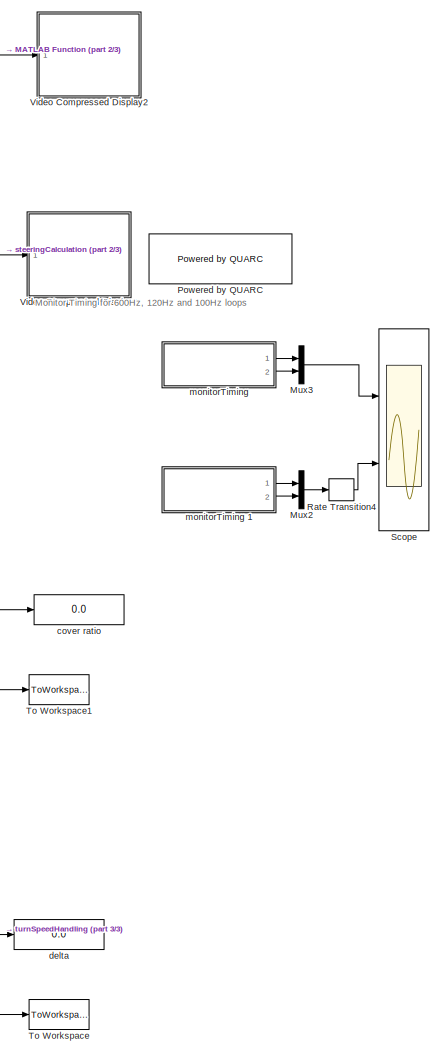
[diagram: root canvas - part 1/3, right side, full height]
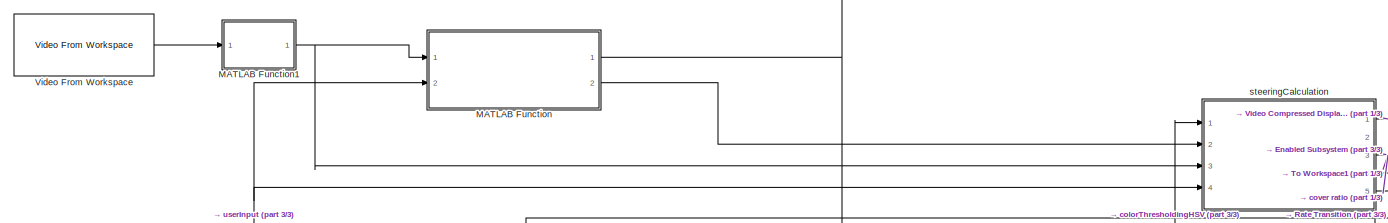
[diagram: root canvas - part 2/3, top center region]
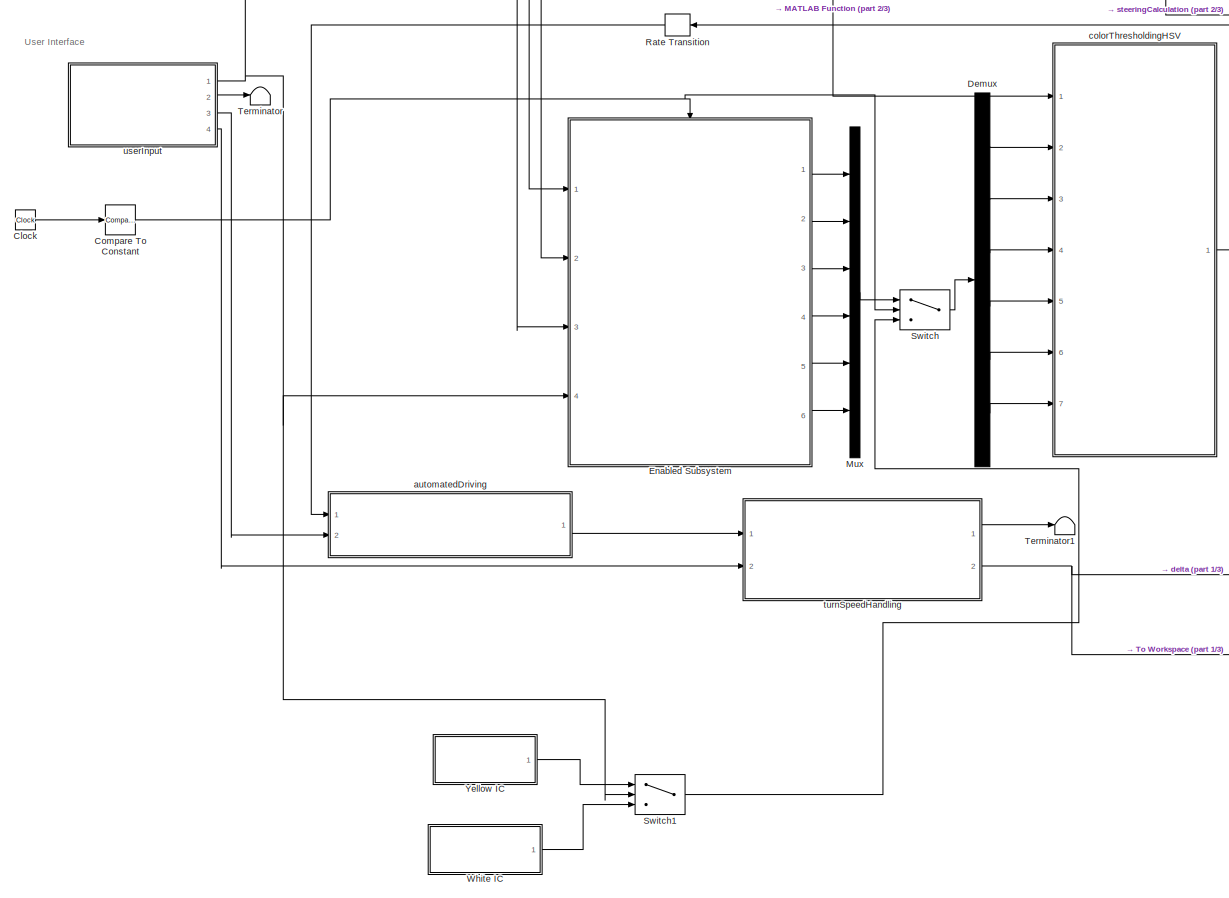
[diagram: root canvas - part 3/3, middle left region]
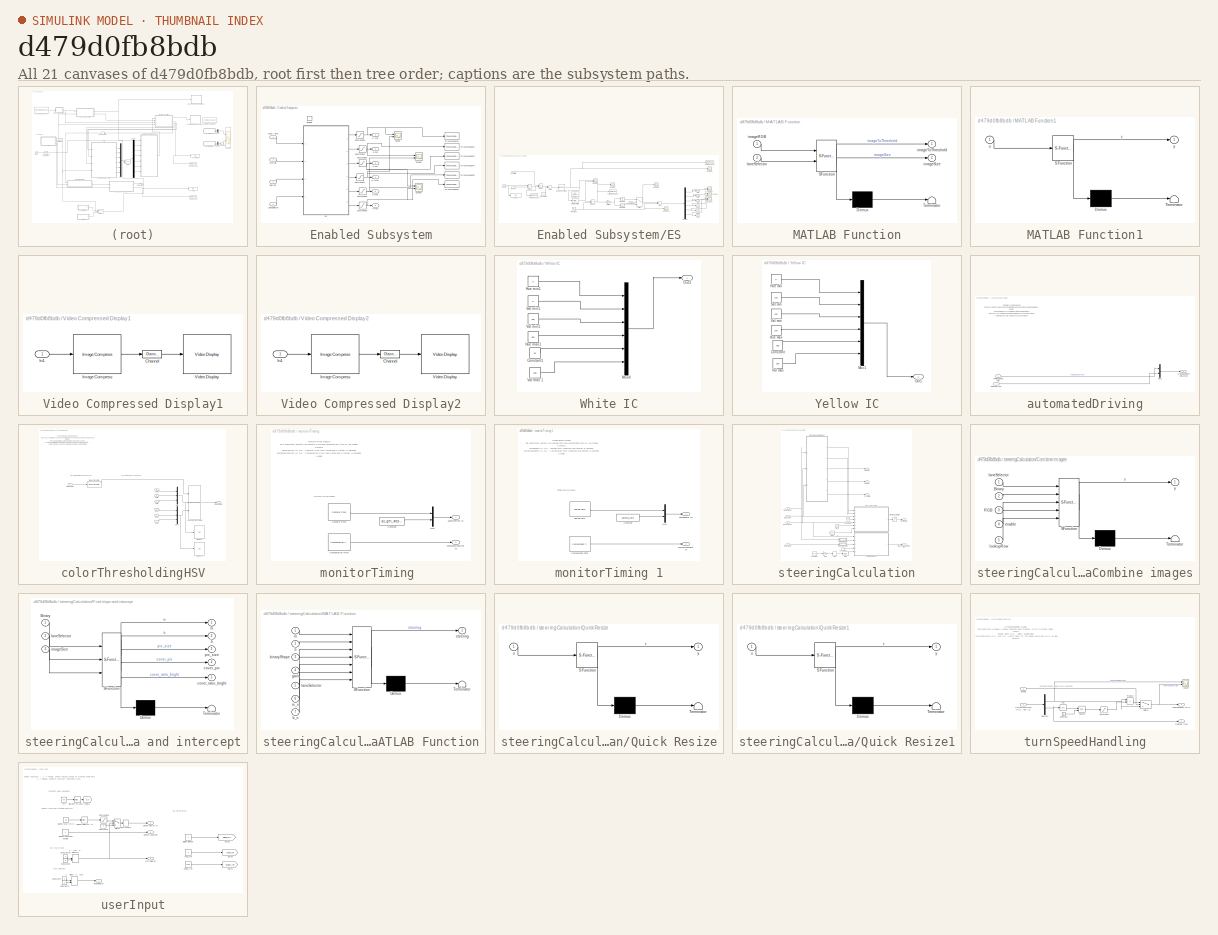
[diagram: thumbnail index - all 21 canvases of the model, root first then tree order]
MODEL slx_d479d0fb8bdb
KIND model
CONFIG AbsTol = auto
CONFIG EnableMultiTasking = off
CONFIG FixedStep = 1/120
CONFIG MaxStep = auto
CONFIG MinStep = auto
CONFIG RelTol = 1e-3
CONFIG SampleTimeConstraint = Unconstrained
CONFIG Solver = ode2
CONFIG SolverName = ode2
CONFIG StartTime = 0.0
CONFIG StopTime = 160
WORKSPACE source: MAT-file member
WORKSPACE MCOS: class17 (value not decoded)
BLOCK [Clock] Clock
BLOCK [Reference] Compare To Constant  REF=simulink/Logic and Bit
Operations/Compare
To Constant
  Ports = [1, 1]
  SourceBlock = simulink/Logic and Bit\nOperations/Compare\nTo Constant
  SourceProductBaseCode = SL
  SourceProductName = Simulink
  SourceType = Compare To Constant
BLOCK [Demux] Demux
  DisplayOption = bar
  Outputs = 6
  Ports = [1, 6]
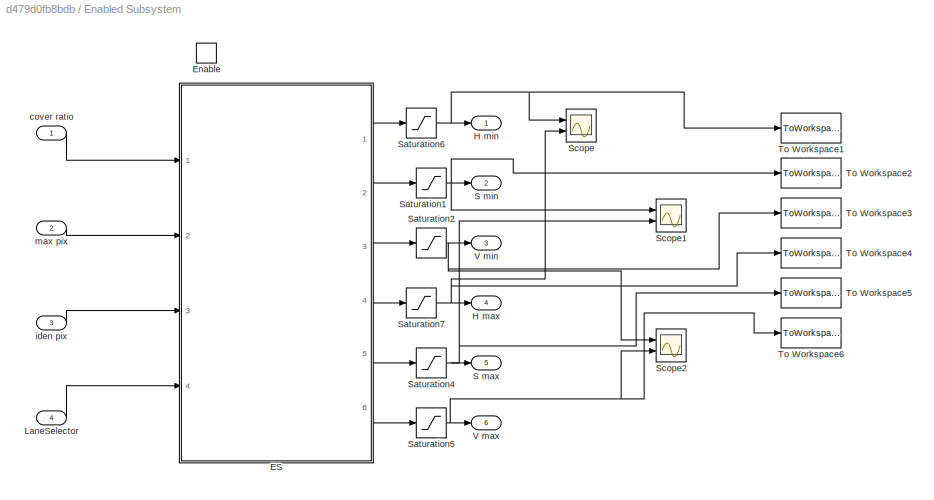
BLOCK [SubSystem] Enabled Subsystem
  Ports = [4, 6, 1]
  RequestExecContextInheritance = off
  TreatAsAtomicUnit = on
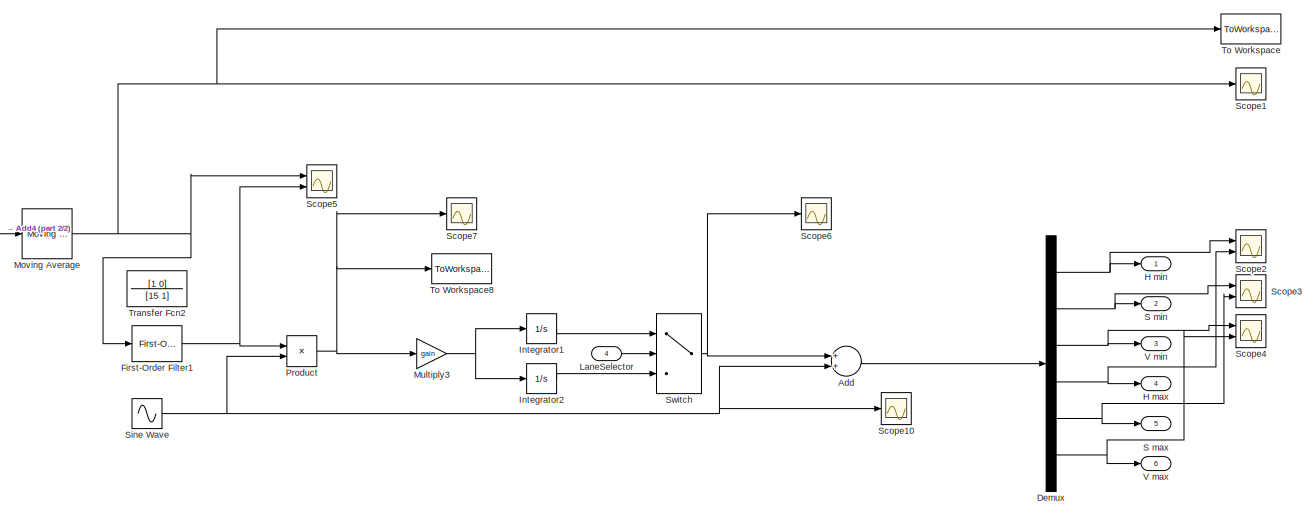
[diagram: Enabled Subsystem/ES - part 1/2, most of the canvas]
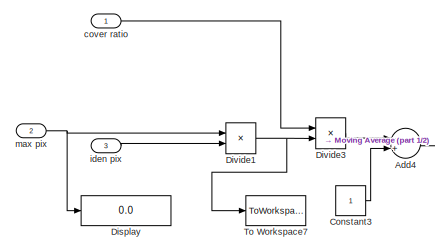
[diagram: Enabled Subsystem/ES - part 2/2, middle left region]
BLOCK [SubSystem] Enabled Subsystem/ES
  Ports = [4, 6]
  RequestExecContextInheritance = off
BLOCK [Sum] Enabled Subsystem/ES/Add
  InputSameDT = off
  OutDataTypeStr = Inherit: Inherit via internal rule
  Ports = [2, 1]
  SaturateOnIntegerOverflow = off
BLOCK [Sum] Enabled Subsystem/ES/Add4
  InputSameDT = off
  Inputs = -+
  OutDataTypeStr = Inherit: Inherit via internal rule
  Ports = [2, 1]
  SaturateOnIntegerOverflow = off
BLOCK [Constant] Enabled Subsystem/ES/Constant3
BLOCK [Demux] Enabled Subsystem/ES/Demux
  DisplayOption = bar
  Outputs = 6
  Ports = [1, 6]
BLOCK [Display] Enabled Subsystem/ES/Display
  Decimation = 1
  Ports = [1]
BLOCK [Product] Enabled Subsystem/ES/Divide1
  InputSameDT = off
  Inputs = /*
  OutDataTypeStr = Inherit: Inherit via internal rule
  Ports = [2, 1]
  RndMeth = Floor
  SaturateOnIntegerOverflow = off
BLOCK [Product] Enabled Subsystem/ES/Divide3
  InputSameDT = off
  Inputs = **
  OutDataTypeStr = Inherit: Inherit via internal rule
  Ports = [2, 1]
  RndMeth = Floor
  SaturateOnIntegerOverflow = off
BLOCK [Reference] Enabled Subsystem/ES/First-Order Filter1  REF=powerlib_meascontrol/Filters/First-Order
Filter
  Ports = [1, 1]
  SourceBlock = powerlib_meascontrol/Filters/First-Order\nFilter
  SourceProductBaseCode = PS
  SourceProductName = Simscape Electrical
  SourceType = First-Order Filter
BLOCK [Outport] Enabled Subsystem/ES/H max
  IconDisplay = Port number
  Port = 4
BLOCK [Outport] Enabled Subsystem/ES/H min
  IconDisplay = Port number
BLOCK [Integrator] Enabled Subsystem/ES/Integrator1
  InitialCondition = [0;100;150;100;255;255]
  LowerSaturationLimit = 0
  Ports = [1, 1]
  UpperSaturationLimit = 255
BLOCK [Integrator] Enabled Subsystem/ES/Integrator2
  InitialCondition = [0;0;150;255;50;255]
  LowerSaturationLimit = 0
  Ports = [1, 1]
  UpperSaturationLimit = 255
BLOCK [Inport] Enabled Subsystem/ES/LaneSelector
  IconDisplay = Port number
  Port = 4
BLOCK [Reference] Enabled Subsystem/ES/Moving Average  REF=dspstat3/Moving
Average
  Ports = [1, 1]
  SourceBlock = dspstat3/Moving\nAverage
  SourceProductBaseCode = DS
  SourceProductName = DSP System Toolbox
  SourceType = dsp.simulink.MovingAverage
BLOCK [Gain] Enabled Subsystem/ES/Multiply3
  Gain = gain
  OutDataTypeStr = Inherit: Inherit via internal rule
  ParamDataTypeStr = Inherit: Inherit via internal rule
  SaturateOnIntegerOverflow = off
BLOCK [Product] Enabled Subsystem/ES/Product
  InputSameDT = off
  OutDataTypeStr = Inherit: Inherit via internal rule
  Ports = [2, 1]
  RndMeth = Floor
  SaturateOnIntegerOverflow = off
BLOCK [Outport] Enabled Subsystem/ES/S max
  IconDisplay = Port number
  Port = 5
BLOCK [Outport] Enabled Subsystem/ES/S min
  IconDisplay = Port number
  Port = 2
BLOCK [Scope] Enabled Subsystem/ES/Scope1
  Floating = off
  NumInputPorts = 1
  Ports = [1]
  ScopeSpecificationString = Simulink.scopes.TimeScopeBlockCfg('CurrentConfiguration', extmgr.ConfigurationSet(extmgr.Configuration('Core','General UI',true),extmgr.Configuration('Core','Source UI',true),extmgr.Configuration('Sources','WiredSimulink',true,'DataLoggingVariableName','ScopeData2'),extmgr.Configuration('Visuals','Time Domain',true,'SerializedDisplays',{struct('MinYLimReal','-0.10881','MaxYLimReal','1.02095','YLab...<+1499ch>
BLOCK [Scope] Enabled Subsystem/ES/Scope10
  Floating = off
  NumInputPorts = 1
  Ports = [1]
  ScopeSpecificationString = Simulink.scopes.TimeScopeBlockCfg('CurrentConfiguration', extmgr.ConfigurationSet(extmgr.Configuration('Core','General UI',true),extmgr.Configuration('Core','Source UI',true),extmgr.Configuration('Sources','WiredSimulink',true,'DataLoggingVariableName','ScopeData3'),extmgr.Configuration('Visuals','Time Domain',true,'SerializedDisplays',{struct('MinYLimReal','-8.33091','MaxYLimReal','17.5013','YLab...<+1544ch>
BLOCK [Scope] Enabled Subsystem/ES/Scope2
  Floating = off
  NumInputPorts = 2
  Ports = [2]
  ScopeSpecificationString = Simulink.scopes.TimeScopeBlockCfg('CurrentConfiguration', extmgr.ConfigurationSet(extmgr.Configuration('Core','General UI',true),extmgr.Configuration('Core','Source UI',true),extmgr.Configuration('Sources','WiredSimulink',true,'DataLoggingVariableName','ScopeData1'),extmgr.Configuration('Visuals','Time Domain',true,'SerializedDisplays',{struct('MinYLimReal','-403.5761','MaxYLimReal','447.49924','Y...<+1531ch>
BLOCK [Scope] Enabled Subsystem/ES/Scope3
  Floating = off
  NumInputPorts = 2
  Ports = [2]
  ScopeSpecificationString = Simulink.scopes.TimeScopeBlockCfg('CurrentConfiguration', extmgr.ConfigurationSet(extmgr.Configuration('Core','General UI',true),extmgr.Configuration('Core','Source UI',true),extmgr.Configuration('Sources','WiredSimulink',true,'DataLoggingVariableName','ScopeData2'),extmgr.Configuration('Visuals','Time Domain',true,'SerializedDisplays',{struct('MinYLimReal','-102.2312','MaxYLimReal','425.25506','Y...<+1487ch>
BLOCK [Scope] Enabled Subsystem/ES/Scope4
  Floating = off
  NumInputPorts = 2
  Ports = [2]
  ScopeSpecificationString = Simulink.scopes.TimeScopeBlockCfg('CurrentConfiguration', extmgr.ConfigurationSet(extmgr.Configuration('Core','General UI',true),extmgr.Configuration('Core','Source UI',true),extmgr.Configuration('Sources','WiredSimulink',true,'DataLoggingVariableName','ScopeData3'),extmgr.Configuration('Visuals','Time Domain',true,'SerializedDisplays',{struct('MinYLimReal','-70.10361','MaxYLimReal','294.78499','Y...<+1484ch>
BLOCK [Scope] Enabled Subsystem/ES/Scope5
  Floating = off
  NumInputPorts = 2
  Ports = [2]
  ScopeSpecificationString = Simulink.scopes.TimeScopeBlockCfg('CurrentConfiguration', extmgr.ConfigurationSet(extmgr.Configuration('Core','General UI',true),extmgr.Configuration('Core','Source UI',true),extmgr.Configuration('Sources','WiredSimulink',true,'DataLoggingVariableName','ScopeData1'),extmgr.Configuration('Visuals','Time Domain',true,'SerializedDisplays',{struct('MinYLimReal','-0.12915','MaxYLimReal','1.12546','YLab...<+1538ch>
BLOCK [Scope] Enabled Subsystem/ES/Scope6
  Floating = off
  NumInputPorts = 1
  Ports = [1]
  ScopeSpecificationString = Simulink.scopes.TimeScopeBlockCfg('CurrentConfiguration', extmgr.ConfigurationSet(extmgr.Configuration('Core','General UI',true),extmgr.Configuration('Core','Source UI',true),extmgr.Configuration('Sources','WiredSimulink',true,'DataLoggingVariableName','ScopeData2'),extmgr.Configuration('Visuals','Time Domain',true,'SerializedDisplays',{struct('MinYLimReal','-147.03776','MaxYLimReal','303.14076','...<+1563ch>
BLOCK [Scope] Enabled Subsystem/ES/Scope7
  Floating = off
  NumInputPorts = 1
  Ports = [1]
  ScopeSpecificationString = Simulink.scopes.TimeScopeBlockCfg('CurrentConfiguration', extmgr.ConfigurationSet(extmgr.Configuration('Core','General UI',true),extmgr.Configuration('Core','Source UI',true),extmgr.Configuration('Sources','WiredSimulink',true,'DataLoggingVariableName','ScopeData1'),extmgr.Configuration('Visuals','Time Domain',true,'SerializedDisplays',{struct('MinYLimReal','-1.89155','MaxYLimReal','1.23213','YLab...<+1662ch>
BLOCK [Sin] Enabled Subsystem/ES/Sine Wave
  Amplitude = amp
  Frequency = freq
  Ports = [0, 1]
  SampleTime = 0
BLOCK [Switch] Enabled Subsystem/ES/Switch
  Criteria = u2 > Threshold
  InputSameDT = off
  SaturateOnIntegerOverflow = off
BLOCK [ToWorkspace] Enabled Subsystem/ES/To Workspace
  FixptAsFi = on
  MaxDataPoints = inf
  Ports = [1]
  SampleTime = -1
  Save2DSignal = 2-D array (concatenate along first dimension)
  VariableName = obj_fcn
BLOCK [ToWorkspace] Enabled Subsystem/ES/To Workspace7
  FixptAsFi = on
  MaxDataPoints = inf
  Ports = [1]
  SampleTime = -1
  SaveFormat = Structure With Time
  VariableName = pix_ratio
BLOCK [ToWorkspace] Enabled Subsystem/ES/To Workspace8
  FixptAsFi = on
  MaxDataPoints = inf
  Ports = [1]
  SampleTime = -1
  SaveFormat = Timeseries
  VariableName = gradient
BLOCK [TransferFcn] Enabled Subsystem/ES/Transfer Fcn2
  Denominator = [15 1]
  Numerator = [1 0]
BLOCK [Outport] Enabled Subsystem/ES/V max
  IconDisplay = Port number
  Port = 6
BLOCK [Outport] Enabled Subsystem/ES/V min
  IconDisplay = Port number
  Port = 3
BLOCK [Inport] Enabled Subsystem/ES/cover ratio 
  IconDisplay = Port number
BLOCK [Inport] Enabled Subsystem/ES/iden pix
  IconDisplay = Port number
  Port = 3
BLOCK [Inport] Enabled Subsystem/ES/max pix 
  IconDisplay = Port number
  Port = 2
BLOCK [EnablePort] Enabled Subsystem/Enable
  Ports = []
BLOCK [Outport] Enabled Subsystem/H max
  IconDisplay = Port number
  Port = 4
BLOCK [Outport] Enabled Subsystem/H min
  IconDisplay = Port number
BLOCK [Inport] Enabled Subsystem/LaneSelector
  IconDisplay = Port number
  Port = 4
BLOCK [Outport] Enabled Subsystem/S max
  IconDisplay = Port number
  Port = 5
BLOCK [Outport] Enabled Subsystem/S min
  IconDisplay = Port number
  Port = 2
BLOCK [Saturate] Enabled Subsystem/Saturation1
  InputPortMap = u0
  LowerLimit = 0
  Ports = [1, 1]
  UpperLimit = 255
BLOCK [Saturate] Enabled Subsystem/Saturation2
  InputPortMap = u0
  LowerLimit = 0
  Ports = [1, 1]
  UpperLimit = 255
BLOCK [Saturate] Enabled Subsystem/Saturation4
  InputPortMap = u0
  LowerLimit = 0
  Ports = [1, 1]
  UpperLimit = 255
BLOCK [Saturate] Enabled Subsystem/Saturation5
  InputPortMap = u0
  LowerLimit = 0
  Ports = [1, 1]
  UpperLimit = 255
BLOCK [Saturate] Enabled Subsystem/Saturation6
  InputPortMap = u0
  LowerLimit = 0
  Ports = [1, 1]
  UpperLimit = 255
BLOCK [Saturate] Enabled Subsystem/Saturation7
  InputPortMap = u0
  LowerLimit = 0
  Ports = [1, 1]
  UpperLimit = 255
BLOCK [Scope] Enabled Subsystem/Scope
  Floating = off
  NumInputPorts = 2
  Ports = [2]
  ScopeSpecificationString = Simulink.scopes.TimeScopeBlockCfg('CurrentConfiguration', extmgr.ConfigurationSet(extmgr.Configuration('Core','General UI',true),extmgr.Configuration('Core','Source UI',true),extmgr.Configuration('Sources','WiredSimulink',true,'DataLoggingVariableName','ScopeData4'),extmgr.Configuration('Visuals','Time Domain',true,'SerializedDisplays',{struct('MinYLimReal','-31.875','MaxYLimReal','286.875','YLabe...<+1436ch>
BLOCK [Scope] Enabled Subsystem/Scope1
  Floating = off
  NumInputPorts = 2
  Ports = [2]
  ScopeSpecificationString = Simulink.scopes.TimeScopeBlockCfg('CurrentConfiguration', extmgr.ConfigurationSet(extmgr.Configuration('Core','General UI',true),extmgr.Configuration('Core','Source UI',true),extmgr.Configuration('Sources','WiredSimulink',true,'DataLoggingVariableName','ScopeData5'),extmgr.Configuration('Visuals','Time Domain',true,'SerializedDisplays',{struct('MinYLimReal','-31.875','MaxYLimReal','286.875','YLabe...<+1483ch>
BLOCK [Scope] Enabled Subsystem/Scope2
  Floating = off
  NumInputPorts = 2
  Ports = [2]
  ScopeSpecificationString = Simulink.scopes.TimeScopeBlockCfg('CurrentConfiguration', extmgr.ConfigurationSet(extmgr.Configuration('Core','General UI',true),extmgr.Configuration('Core','Source UI',true),extmgr.Configuration('Sources','WiredSimulink',true,'DataLoggingVariableName','ScopeData6'),extmgr.Configuration('Visuals','Time Domain',true,'SerializedDisplays',{struct('MinYLimReal','-31.875','MaxYLimReal','286.875','YLabe...<+1481ch>
BLOCK [ToWorkspace] Enabled Subsystem/To Workspace1
  FixptAsFi = on
  MaxDataPoints = inf
  Ports = [1]
  SampleTime = -1
  Save2DSignal = 2-D array (concatenate along first dimension)
  SaveFormat = Structure With Time
  VariableName = H_min1
BLOCK [ToWorkspace] Enabled Subsystem/To Workspace2
  FixptAsFi = on
  MaxDataPoints = inf
  Ports = [1]
  SampleTime = -1
  Save2DSignal = 2-D array (concatenate along first dimension)
  SaveFormat = Structure With Time
  VariableName = S_min1
BLOCK [ToWorkspace] Enabled Subsystem/To Workspace3
  FixptAsFi = on
  MaxDataPoints = inf
  Ports = [1]
  SampleTime = -1
  Save2DSignal = 2-D array (concatenate along first dimension)
  SaveFormat = Structure With Time
  VariableName = V_min1
BLOCK [ToWorkspace] Enabled Subsystem/To Workspace4
  FixptAsFi = on
  MaxDataPoints = inf
  Ports = [1]
  SampleTime = -1
  Save2DSignal = 2-D array (concatenate along first dimension)
  SaveFormat = Structure With Time
  VariableName = H_max1
BLOCK [ToWorkspace] Enabled Subsystem/To Workspace5
  FixptAsFi = on
  MaxDataPoints = inf
  Ports = [1]
  SampleTime = -1
  Save2DSignal = 2-D array (concatenate along first dimension)
  SaveFormat = Structure With Time
  VariableName = S_max1
BLOCK [ToWorkspace] Enabled Subsystem/To Workspace6
  FixptAsFi = on
  MaxDataPoints = inf
  Ports = [1]
  SampleTime = -1
  Save2DSignal = 2-D array (concatenate along first dimension)
  SaveFormat = Structure With Time
  VariableName = V_max1
BLOCK [Outport] Enabled Subsystem/V max
  IconDisplay = Port number
  Port = 6
BLOCK [Outport] Enabled Subsystem/V min
  IconDisplay = Port number
  Port = 3
BLOCK [Inport] Enabled Subsystem/cover ratio
  IconDisplay = Port number
BLOCK [Inport] Enabled Subsystem/iden pix
  IconDisplay = Port number
  Port = 3
BLOCK [Inport] Enabled Subsystem/max pix
  IconDisplay = Port number
  Port = 2
BLOCK [SubSystem] MATLAB Function
  ErrorFcn = Stateflow.Translate.translate
  PermitHierarchicalResolution = ExplicitOnly
  Ports = [2, 2]
  RequestExecContextInheritance = off
  SFBlockType = MATLAB Function
  TreatAsAtomicUnit = on
BLOCK [Demux] MATLAB Function/ Demux 
  DisplayOption = bar
  Outputs = 1
  Ports = [1, 1]
BLOCK [S-Function] MATLAB Function/ SFunction 
  EnableBusSupport = on
  FunctionName = sf_sfun
  PortCounts = [2 3]
  Ports = [2, 3]
  SFcnIsStateOwnerBlock = off
  SFunctionDeploymentMode = off
  Tag = Stateflow S-Function ES_video_no_motion_fix_dither 11
BLOCK [Terminator] MATLAB Function/ Terminator 
BLOCK [Inport] MATLAB Function/imageRGB
  IconDisplay = Port number
BLOCK [Outport] MATLAB Function/imageSize
  IconDisplay = Port number
  Port = 2
BLOCK [Outport] MATLAB Function/imageToThreshold
  IconDisplay = Port number
BLOCK [Inport] MATLAB Function/laneSelector
  IconDisplay = Port number
  Port = 2
BLOCK [SubSystem] MATLAB Function1
  ErrorFcn = Stateflow.Translate.translate
  PermitHierarchicalResolution = ExplicitOnly
  Ports = [1, 1]
  RequestExecContextInheritance = off
  SFBlockType = MATLAB Function
  TreatAsAtomicUnit = on
BLOCK [Demux] MATLAB Function1/ Demux 
  Outputs = 1
  Ports = [1, 1]
BLOCK [S-Function] MATLAB Function1/ SFunction 
  EnableBusSupport = on
  FunctionName = sf_sfun
  PortCounts = [1 2]
  Ports = [1, 2]
  SFcnIsStateOwnerBlock = off
  SFunctionDeploymentMode = off
  Tag = Stateflow S-Function ES_video_no_motion_fix_dither 7
BLOCK [Terminator] MATLAB Function1/ Terminator 
BLOCK [Inport] MATLAB Function1/u
  IconDisplay = Port number
BLOCK [Outport] MATLAB Function1/y
  IconDisplay = Port number
BLOCK [Mux] Mux
  DisplayOption = bar
  Inputs = 6
  Ports = [6, 1]
BLOCK [Mux] Mux2
  DisplayOption = bar
  Inputs = 2
  Ports = [2, 1]
BLOCK [Mux] Mux3
  DisplayOption = bar
  Inputs = 2
  Ports = [2, 1]
BLOCK [Reference] Powered by QUARC  REF=quarc_library/Logos/Powered by QUARC
  Ports = []
  SourceBlock = quarc_library/Logos/Powered by QUARC
  SourceProductName = QUARC Targets
  SourceType = Powered by QUARC
BLOCK [RateTransition] Rate Transition
BLOCK [RateTransition] Rate Transition4
BLOCK [Scope] Scope
  Floating = off
  NumInputPorts = 2
  Ports = [2]
  ScopeSpecificationString = Simulink.scopes.TimeScopeBlockCfg('CurrentConfiguration', extmgr.ConfigurationSet(extmgr.Configuration('Core','General UI',true),extmgr.Configuration('Core','Source UI',true),extmgr.Configuration('Sources','WiredSimulink',true,'DataLoggingVariableName','ScopeData1'),extmgr.Configuration('Visuals','Time Domain',true,'SerializedDisplays',{struct('MinYLimReal','-0.00084','MaxYLimReal','0.00516','YLab...<+2757ch>
BLOCK [Switch] Switch
  Criteria = u2 > Threshold
  InputSameDT = off
  SaturateOnIntegerOverflow = off
BLOCK [Switch] Switch1
  Criteria = u2 > Threshold
  InputSameDT = off
  SaturateOnIntegerOverflow = off
BLOCK [Terminator] Terminator
BLOCK [Terminator] Terminator1
BLOCK [ToWorkspace] To Workspace
  FixptAsFi = on
  MaxDataPoints = inf
  Ports = [1]
  SampleTime = -1
  SaveFormat = Structure With Time
  VariableName = delta
BLOCK [ToWorkspace] To Workspace1
  FixptAsFi = on
  MaxDataPoints = inf
  Ports = [1]
  SampleTime = -1
  Save2DSignal = 2-D array (concatenate along first dimension)
  SaveFormat = Structure With Time
  VariableName = cover_ratio
BLOCK [SubSystem] Video Compressed Display1
  CopyFcn = set_param(gcbh, 'UserData', gcb);\nset_param(gcbh, 'LinkStatus', 'none');
  LoadFcn = set_param(gcbh, 'UserData', gcb);
  NameChangeFcn = video_display_show([get_param(gcbh, 'UserData'), '/Video Display'], 'rename', [gcb, '/Video Display']);\nvideo_display_show([gcb, '/Video Display'], 'add', gcb);\nset_param(gcbh, 'UserData', gcb);
  OpenFcn = video_display_show([gcb, '/Video Display'], 'show', gcb);
  Ports = [1]
  PreDeleteFcn = video_display_show([gcb, '/Video Display'], 'delete');
  RequestExecContextInheritance = off
  StartFcn = video_display_show([gcb, '/Video Display'], 'add', gcb);
  UndoDeleteFcn = set_param(gcbh, 'UserData', gcb);
BLOCK [Reference] Video Compressed Display1/Channel  REF=quarc_library/Signal Routing/Channel
  Ports = [1, 1]
  SourceBlock = quarc_library/Signal Routing/Channel
  SourceProductName = QUARC Targets
  SourceType = Channel
BLOCK [Reference] Video Compressed Display1/Image Compress  REF=quarc_library/Image Processing/Generic/Image Compress
  AttributesFormatString = (%<algorithm>)
  Ports = [1, 1]
  SourceBlock = quarc_library/Image Processing/Generic/Image Compress
  SourceProductName = QUARC Targets
  SourceType = Image Compress
BLOCK [Inport] Video Compressed Display1/In1
  IconDisplay = Port number
BLOCK [Reference] Video Compressed Display1/Video Display  REF=quarc_library/Multimedia/Video Display
  Ports = [1]
  SourceBlock = quarc_library/Multimedia/Video Display
  SourceProductName = QUARC Targets
  SourceType = Video Display
  Tag = ES_video_no_motion_fix_dither/Video Compressed\nDisplay1/Video Display
  UserDataPersistent = on
BLOCK [SubSystem] Video Compressed Display2
  CopyFcn = set_param(gcbh, 'UserData', gcb);\nset_param(gcbh, 'LinkStatus', 'none');
  LoadFcn = set_param(gcbh, 'UserData', gcb);
  NameChangeFcn = video_display_show([get_param(gcbh, 'UserData'), '/Video Display'], 'rename', [gcb, '/Video Display']);\nvideo_display_show([gcb, '/Video Display'], 'add', gcb);\nset_param(gcbh, 'UserData', gcb);
  OpenFcn = video_display_show([gcb, '/Video Display'], 'show', gcb);
  Ports = [1]
  PreDeleteFcn = video_display_show([gcb, '/Video Display'], 'delete');
  RequestExecContextInheritance = off
  StartFcn = video_display_show([gcb, '/Video Display'], 'add', gcb);
  UndoDeleteFcn = set_param(gcbh, 'UserData', gcb);
BLOCK [Reference] Video Compressed Display2/Channel  REF=quarc_library/Signal Routing/Channel
  Ports = [1, 1]
  SourceBlock = quarc_library/Signal Routing/Channel
  SourceProductName = QUARC Targets
  SourceType = Channel
BLOCK [Reference] Video Compressed Display2/Image Compress  REF=quarc_library/Image Processing/Generic/Image Compress
  AttributesFormatString = (%<algorithm>)
  Ports = [1, 1]
  SourceBlock = quarc_library/Image Processing/Generic/Image Compress
  SourceProductName = QUARC Targets
  SourceType = Image Compress
BLOCK [Inport] Video Compressed Display2/In1
  IconDisplay = Port number
BLOCK [Reference] Video Compressed Display2/Video Display  REF=quarc_library/Multimedia/Video Display
  Ports = [1]
  SourceBlock = quarc_library/Multimedia/Video Display
  SourceProductName = QUARC Targets
  SourceType = Video Display
  Tag = ES_video_no_motion_fix_dither/Video Compressed\nDisplay2/Video Display
  UserDataPersistent = on
BLOCK [Reference] Video From Workspace  REF=visionsources/Video From Workspace
  Ports = [0, 1]
  SourceBlock = visionsources/Video From Workspace
  SourceProductBaseCode = VP
  SourceProductName = Computer Vision Toolbox
  SourceType = Video From Workspace
BLOCK [SubSystem] White IC
  Ports = [0, 1]
  RequestExecContextInheritance = off
BLOCK [Constant] White IC/Constant1
  Value = 50
BLOCK [Constant] White IC/Hue max1
  Value = 255
BLOCK [Constant] White IC/Hue min1
  Value = 0
BLOCK [Mux] White IC/Mux4
  DisplayOption = bar
  Inputs = 6
  Ports = [6, 1]
BLOCK [Outport] White IC/Out1
  IconDisplay = Port number
BLOCK [Constant] White IC/Sat min1
  Value = 0
BLOCK [Constant] White IC/Val max 1
  Value = 255
BLOCK [Constant] White IC/Val min1
  Value = 150
BLOCK [SubSystem] Yellow IC
  Ports = [0, 1]
  RequestExecContextInheritance = off
BLOCK [Constant] Yellow IC/Constant
  Value = 255
BLOCK [Constant] Yellow IC/Hue max
  Value = 100
BLOCK [Constant] Yellow IC/Hue min
  Value = 0
BLOCK [Mux] Yellow IC/Mux1
  DisplayOption = bar
  Inputs = 6
  Ports = [6, 1]
BLOCK [Outport] Yellow IC/Out1
  IconDisplay = Port number
BLOCK [Constant] Yellow IC/Sat min
  Value = 100
BLOCK [Constant] Yellow IC/Val max 
  Value = 255
BLOCK [Constant] Yellow IC/Val min
  Value = 150
BLOCK [SubSystem] automatedDriving
  Ports = [2, 1]
  RequestExecContextInheritance = off
BLOCK [Mux] automatedDriving/Mux1
  DisplayOption = bar
  Inputs = 2
  Ports = [2, 1]
BLOCK [Inport] automatedDriving/nominalSpeed (m//s)
  IconDisplay = Port number
  Port = 2
BLOCK [Inport] automatedDriving/steering (rad)
  IconDisplay = Port number
BLOCK [Outport] automatedDriving/systemCommand (m//s, rad) [2]
  IconDisplay = Port number
BLOCK [SubSystem] colorThresholdingHSV
  Ports = [7, 1]
  RequestExecContextInheritance = off
BLOCK [Display] colorThresholdingHSV/Display1
  Decimation = 1
  Ports = [1]
BLOCK [Display] colorThresholdingHSV/Display2
  Decimation = 1
  Ports = [1]
BLOCK [Inport] colorThresholdingHSV/H max
  IconDisplay = Port number
  Port = 5
BLOCK [Inport] colorThresholdingHSV/H min
  IconDisplay = Port number
  Port = 2
BLOCK [Reference] colorThresholdingHSV/HSV Color Thresholding  REF=quarc_library/Image Processing/Generic/Image Compare
  Ports = [3, 1]
  SourceBlock = quarc_library/Image Processing/Generic/Image Compare
  SourceProductName = QUARC Targets
  SourceType = Image Compare
BLOCK [Reference] colorThresholdingHSV/Image Transform  REF=quarc_library/Image Processing/Generic/Image Transform
  AttributesFormatString = (%<algorithm>)
  Ports = [1, 1]
  SourceBlock = quarc_library/Image Processing/Generic/Image Transform
  SourceProductName = QUARC Targets
  SourceType = Image Transform
BLOCK [Mux] colorThresholdingHSV/Mux
  DisplayOption = bar
  Inputs = 3
  Ports = [3, 1]
BLOCK [Mux] colorThresholdingHSV/Mux1
  DisplayOption = bar
  Inputs = 3
  Ports = [3, 1]
BLOCK [Inport] colorThresholdingHSV/S max
  IconDisplay = Port number
  Port = 6
BLOCK [Inport] colorThresholdingHSV/S min
  IconDisplay = Port number
  Port = 3
BLOCK [Inport] colorThresholdingHSV/V max
  IconDisplay = Port number
  Port = 7
BLOCK [Inport] colorThresholdingHSV/V min
  IconDisplay = Port number
  Port = 4
BLOCK [Outport] colorThresholdingHSV/imageBinary
  IconDisplay = Port number
BLOCK [Inport] colorThresholdingHSV/imageRGB
  IconDisplay = Port number
BLOCK [Display] cover ratio
  Decimation = 1
  Ports = [1]
BLOCK [Display] delta 
  Decimation = 1
  Ports = [1]
BLOCK [SubSystem] monitorTiming 
  Ports = [0, 2]
  RequestExecContextInheritance = off
BLOCK [Reference] monitorTiming /Computation Time  REF=quarc_library/Sources/Time/Computation Time
  Ports = [0, 1]
  SourceBlock = quarc_library/Sources/Time/Computation Time
  SourceProductName = QUARC Targets
  SourceType = Computation Time
BLOCK [Constant] monitorTiming /Constant
  SampleTime = -1
  Value = qc_get_step_size
BLOCK [Mux] monitorTiming /Mux
  DisplayOption = bar
  Inputs = 2
  Ports = [2, 1]
BLOCK [Reference] monitorTiming /Sample Time  REF=quarc_library/Sources/Time/Sample Time
  Ports = [0, 1]
  Priority = -99
  SourceBlock = quarc_library/Sources/Time/Sample Time
  SourceProductName = QUARC Targets
  SourceType = Sample Time
BLOCK [Outport] monitorTiming /computationTime (s)
  IconDisplay = Port number
  Port = 2
BLOCK [Outport] monitorTiming /sampleTime (s)
  IconDisplay = Port number
BLOCK [SubSystem] monitorTiming 1
  Ports = [0, 2]
  RequestExecContextInheritance = off
BLOCK [Reference] monitorTiming 1/Computation Time  REF=quarc_library/Sources/Time/Computation Time
  Ports = [0, 1]
  SourceBlock = quarc_library/Sources/Time/Computation Time
  SourceProductName = QUARC Targets
  SourceType = Computation Time
BLOCK [Constant] monitorTiming 1/Constant
  SampleTime = camera_rate
  Value = camera_rate
BLOCK [Mux] monitorTiming 1/Mux
  DisplayOption = bar
  Inputs = 2
  Ports = [2, 1]
BLOCK [Reference] monitorTiming 1/Sample Time  REF=quarc_library/Sources/Time/Sample Time
  Ports = [0, 1]
  Priority = -99
  SourceBlock = quarc_library/Sources/Time/Sample Time
  SourceProductName = QUARC Targets
  SourceType = Sample Time
BLOCK [Outport] monitorTiming 1/computationTime (s)
  IconDisplay = Port number
  Port = 2
BLOCK [Outport] monitorTiming 1/sampleTime (s)
  IconDisplay = Port number
BLOCK [SubSystem] steeringCalculation
  Ports = [4, 5]
  RequestExecContextInheritance = off
BLOCK [Bias] steeringCalculation/Bias
  Bias = 1
  SaturateOnIntegerOverflow = off
BLOCK [SubSystem] steeringCalculation/Combine images
  ErrorFcn = Stateflow.Translate.translate
  PermitHierarchicalResolution = ExplicitOnly
  Ports = [5, 1]
  RequestExecContextInheritance = off
  SFBlockType = MATLAB Function
  TreatAsAtomicUnit = on
BLOCK [Demux] steeringCalculation/Combine images/ Demux 
  DisplayOption = bar
  Outputs = 1
  Ports = [1, 1]
BLOCK [S-Function] steeringCalculation/Combine images/ SFunction 
  EnableBusSupport = on
  FunctionName = sf_sfun
  PortCounts = [5 2]
  Ports = [5, 2]
  SFcnIsStateOwnerBlock = off
  SFunctionDeploymentMode = off
  Tag = Stateflow S-Function ES_video_no_motion_fix_dither 6
BLOCK [Terminator] steeringCalculation/Combine images/ Terminator 
BLOCK [Inport] steeringCalculation/Combine images/Binary
  IconDisplay = Port number
  Port = 2
BLOCK [Inport] steeringCalculation/Combine images/RGB
  IconDisplay = Port number
  Port = 3
BLOCK [Inport] steeringCalculation/Combine images/enable
  IconDisplay = Port number
  Port = 4
BLOCK [Inport] steeringCalculation/Combine images/laneSelector
  IconDisplay = Port number
BLOCK [Inport] steeringCalculation/Combine images/lookupRow
  IconDisplay = Port number
  Port = 5
BLOCK [Outport] steeringCalculation/Combine images/y
  IconDisplay = Port number
BLOCK [Constant] steeringCalculation/Constant
  Value = 220
BLOCK [Constant] steeringCalculation/Constant3
  Value = 0.75
BLOCK [Constant] steeringCalculation/Constant4
BLOCK [SubSystem] steeringCalculation/Find slope and intercept
  ErrorFcn = Stateflow.Translate.translate
  PermitHierarchicalResolution = ExplicitOnly
  Ports = [3, 5]
  RequestExecContextInheritance = off
  SFBlockType = MATLAB Function
  TreatAsAtomicUnit = on
BLOCK [Demux] steeringCalculation/Find slope and intercept/ Demux 
  DisplayOption = bar
  Outputs = 1
  Ports = [1, 1]
BLOCK [S-Function] steeringCalculation/Find slope and intercept/ SFunction 
  EnableBusSupport = on
  FunctionName = sf_sfun
  PortCounts = [3 6]
  Ports = [3, 6]
  SFcnIsStateOwnerBlock = off
  SFunctionDeploymentMode = off
  Tag = Stateflow S-Function ES_video_no_motion_fix_dither 2
BLOCK [Terminator] steeringCalculation/Find slope and intercept/ Terminator 
BLOCK [Inport] steeringCalculation/Find slope and intercept/Binary
  IconDisplay = Port number
BLOCK [Outport] steeringCalculation/Find slope and intercept/b
  IconDisplay = Port number
  Port = 2
BLOCK [Outport] steeringCalculation/Find slope and intercept/cover_pix
  IconDisplay = Port number
  Port = 4
BLOCK [Outport] steeringCalculation/Find slope and intercept/cover_ratio_bright
  IconDisplay = Port number
  Port = 5
BLOCK [Inport] steeringCalculation/Find slope and intercept/imageSize
  IconDisplay = Port number
  Port = 3
BLOCK [Inport] steeringCalculation/Find slope and intercept/laneSelector
  IconDisplay = Port number
  Port = 2
BLOCK [Outport] steeringCalculation/Find slope and intercept/m
  IconDisplay = Port number
BLOCK [Outport] steeringCalculation/Find slope and intercept/pix_size
  IconDisplay = Port number
  Port = 3
BLOCK [Rounding] steeringCalculation/Floor
BLOCK [From] steeringCalculation/From
  GotoTag = b_n
  TagVisibility = global
BLOCK [Gain] steeringCalculation/Gain
  Gain = 0.33
  OutDataTypeStr = Inherit: Inherit via internal rule
  ParamDataTypeStr = Inherit: Inherit via internal rule
  SaturateOnIntegerOverflow = off
BLOCK [SubSystem] steeringCalculation/MATLAB Function
  ErrorFcn = Stateflow.Translate.translate
  PermitHierarchicalResolution = ExplicitOnly
  Ports = [7, 1]
  RequestExecContextInheritance = off
  SFBlockType = MATLAB Function
  TreatAsAtomicUnit = on
BLOCK [Demux] steeringCalculation/MATLAB Function/ Demux 
  DisplayOption = bar
  Outputs = 1
  Ports = [1, 1]
BLOCK [S-Function] steeringCalculation/MATLAB Function/ SFunction 
  EnableBusSupport = on
  FunctionName = sf_sfun
  PortCounts = [7 2]
  Ports = [7, 2]
  SFcnIsStateOwnerBlock = off
  SFunctionDeploymentMode = off
  Tag = Stateflow S-Function ES_video_no_motion_fix_dither 4
BLOCK [Terminator] steeringCalculation/MATLAB Function/ Terminator 
BLOCK [Inport] steeringCalculation/MATLAB Function/b
  IconDisplay = Port number
  Port = 2
BLOCK [Inport] steeringCalculation/MATLAB Function/b_n
  IconDisplay = Port number
  Port = 7
BLOCK [Inport] steeringCalculation/MATLAB Function/binaryShape
  IconDisplay = Port number
  Port = 3
BLOCK [Inport] steeringCalculation/MATLAB Function/gain
  IconDisplay = Port number
  Port = 4
BLOCK [Inport] steeringCalculation/MATLAB Function/laneSelector
  IconDisplay = Port number
  Port = 5
BLOCK [Inport] steeringCalculation/MATLAB Function/m
  IconDisplay = Port number
BLOCK [Inport] steeringCalculation/MATLAB Function/m_n
  IconDisplay = Port number
  Port = 6
BLOCK [Outport] steeringCalculation/MATLAB Function/steering
  IconDisplay = Port number
BLOCK [SubSystem] steeringCalculation/Quick Resize
  ErrorFcn = Stateflow.Translate.translate
  PermitHierarchicalResolution = ExplicitOnly
  Ports = [1, 1]
  RequestExecContextInheritance = off
  SFBlockType = MATLAB Function
  TreatAsAtomicUnit = on
BLOCK [Demux] steeringCalculation/Quick Resize/ Demux 
  DisplayOption = bar
  Outputs = 1
  Ports = [1, 1]
BLOCK [S-Function] steeringCalculation/Quick Resize/ SFunction 
  EnableBusSupport = on
  FunctionName = sf_sfun
  PortCounts = [1 2]
  Ports = [1, 2]
  SFcnIsStateOwnerBlock = off
  SFunctionDeploymentMode = off
  Tag = Stateflow S-Function ES_video_no_motion_fix_dither 5
BLOCK [Terminator] steeringCalculation/Quick Resize/ Terminator 
BLOCK [Inport] steeringCalculation/Quick Resize/u
  IconDisplay = Port number
BLOCK [Outport] steeringCalculation/Quick Resize/y
  IconDisplay = Port number
BLOCK [SubSystem] steeringCalculation/Quick Resize1
  ErrorFcn = Stateflow.Translate.translate
  PermitHierarchicalResolution = ExplicitOnly
  Ports = [1, 1]
  RequestExecContextInheritance = off
  SFBlockType = MATLAB Function
  TreatAsAtomicUnit = on
BLOCK [Demux] steeringCalculation/Quick Resize1/ Demux 
  DisplayOption = bar
  Outputs = 1
  Ports = [1, 1]
BLOCK [S-Function] steeringCalculation/Quick Resize1/ SFunction 
  EnableBusSupport = on
  FunctionName = sf_sfun
  PortCounts = [1 2]
  Ports = [1, 2]
  SFcnIsStateOwnerBlock = off
  SFunctionDeploymentMode = off
  Tag = Stateflow S-Function ES_video_no_motion_fix_dither 9
BLOCK [Terminator] steeringCalculation/Quick Resize1/ Terminator 
BLOCK [Inport] steeringCalculation/Quick Resize1/u
  IconDisplay = Port number
BLOCK [Outport] steeringCalculation/Quick Resize1/y
  IconDisplay = Port number
BLOCK [Saturate] steeringCalculation/Steering Saturation1
  InputPortMap = u0
  Ports = [1, 1]
BLOCK [Outport] steeringCalculation/cover ratio 
  IconDisplay = Port number
  Port = 3
BLOCK [Outport] steeringCalculation/iden pix
  IconDisplay = Port number
  Port = 5
BLOCK [Inport] steeringCalculation/imageBinary
  IconDisplay = Port number
BLOCK [Inport] steeringCalculation/imageRGB
  IconDisplay = Port number
  Port = 3
BLOCK [Outport] steeringCalculation/imageRGBForDisplay
  IconDisplay = Port number
BLOCK [Inport] steeringCalculation/imageSize
  IconDisplay = Port number
  Port = 2
BLOCK [Inport] steeringCalculation/laneSelector
  IconDisplay = Port number
  Port = 4
BLOCK [Constant] steeringCalculation/m_n
  Value = 0.51
BLOCK [Outport] steeringCalculation/max pix
  IconDisplay = Port number
  Port = 4
BLOCK [Outport] steeringCalculation/steering (rad)
  IconDisplay = Port number
  Port = 2
BLOCK [SubSystem] turnSpeedHandling
  Ports = [2, 2]
  RequestExecContextInheritance = off
BLOCK [Constant] turnSpeedHandling/Constant
  Value = 8
BLOCK [Trigonometry] turnSpeedHandling/Cos
  Operator = cos
  Ports = [1, 1]
BLOCK [Demux] turnSpeedHandling/Demux1
  DisplayOption = bar
  Outputs = 2
  Ports = [1, 2]
BLOCK [Product] turnSpeedHandling/Product
  InputSameDT = off
  OutDataTypeStr = Inherit: Inherit via internal rule
  Ports = [2, 1]
  RndMeth = Floor
  SaturateOnIntegerOverflow = off
BLOCK [Saturate] turnSpeedHandling/Saturation
  InputPortMap = u0
  LowerLimit = 0.5
  Ports = [1, 1]
  UpperLimit = 1
BLOCK [Scope] turnSpeedHandling/Scope
  Floating = off
  NumInputPorts = 2
  Ports = [2]
  ScopeSpecificationString = Simulink.scopes.TimeScopeBlockCfg('CurrentConfiguration', extmgr.ConfigurationSet(extmgr.Configuration('Core','General UI',true),extmgr.Configuration('Core','Source UI',true),extmgr.Configuration('Sources','WiredSimulink',true,'DataLoggingVariableName','ScopeData2'),extmgr.Configuration('Visuals','Time Domain',true,'SerializedDisplays',{struct('MinYLimReal','-2','MaxYLimReal','2','YLabelReal','m/s...<+1400ch>
BLOCK [Math] turnSpeedHandling/Square
  Operator = pow
  Ports = [2, 1]
BLOCK [Switch] turnSpeedHandling/Switch
  Criteria = u2 > Threshold
  InputSameDT = off
  SaturateOnIntegerOverflow = off
  Threshold = 0.5
BLOCK [Outport] turnSpeedHandling/desiredSpeed (m//s)
  IconDisplay = Port number
BLOCK [Inport] turnSpeedHandling/enable
  IconDisplay = Port number
  Port = 2
BLOCK [Outport] turnSpeedHandling/steering (rad)
  IconDisplay = Port number
  Port = 2
BLOCK [Inport] turnSpeedHandling/systemCommand (m//s, rad) [2]
  IconDisplay = Port number
BLOCK [SubSystem] userInput
  Ports = [0, 4]
  RequestExecContextInheritance = off
BLOCK [ManualSwitch] userInput/1 - Arm, 0 - Disarm1
  CurrentSetting = 0
BLOCK [ManualSwitch] userInput/1 - Right, 0 - Left
BLOCK [Outport] userInput/Arm//Disarm
  IconDisplay = Port number
  Port = 2
BLOCK [Constant] userInput/Constant10
BLOCK [Constant] userInput/Constant3
  Value = 0
BLOCK [Constant] userInput/Constant4
BLOCK [Constant] userInput/Constant8
  Value = 0
BLOCK [Constant] userInput/Constant9
  Value = 0
BLOCK [Reference] userInput/Distane To Lane (0)   REF=simulink/Math
Operations/Slider
Gain
  Ports = [1, 1]
  SourceBlock = simulink/Math\nOperations/Slider\nGain
  SourceProductBaseCode = SL
  SourceType = Slider Gain
BLOCK [Goto] userInput/Goto
  GotoTag = b_n
  TagVisibility = global
BLOCK [Goto] userInput/Goto1
  GotoTag = bright_ref
  TagVisibility = global
BLOCK [Goto] userInput/Goto2
  GotoTag = slding_window
  TagVisibility = global
BLOCK [Goto] userInput/Goto5
  GotoTag = ratio_ref
  TagVisibility = global
BLOCK [RateLimiter] userInput/Rate Limiter
  FallingSlewLimit = -Inf
  SampleTimeMode = inherited
BLOCK [Saturate] userInput/Saturation1
  InputPortMap = u0
  LowerLimit = 0
  Ports = [1, 1]
  UpperLimit = 1
BLOCK [Constant] userInput/Sliding window
  Value = 2
BLOCK [Outport] userInput/Speed Des(m//s)
  IconDisplay = Port number
  Port = 3
BLOCK [Constant] userInput/Speed Max (m//s)
  Value = 1.5
BLOCK [Reference] userInput/Speed Selector (1)  REF=simulink/Math
Operations/Slider
Gain
  Ports = [1, 1]
  SourceBlock = simulink/Math\nOperations/Slider\nGain
  SourceProductBaseCode = SL
  SourceType = Slider Gain
BLOCK [Outport] userInput/Speed reduction
  IconDisplay = Port number
  Port = 4
BLOCK [Constant] userInput/Speed reduction enable
  Value = 0
BLOCK [Switch] userInput/Switch
  Criteria = u2 > Threshold
  InputSameDT = off
  SaturateOnIntegerOverflow = off
BLOCK [Constant] userInput/b_n
  Value = 50
BLOCK [Constant] userInput/bright_ref
  Value = 2000
BLOCK [Outport] userInput/laneSelector
  IconDisplay = Port number
BLOCK [Constant] userInput/ratio_ref
ANNOTATION (root): Monitor Timing for 600Hz, 120Hz and 100Hz loops
ANNOTATION (root): User Interface
ANNOTATION automatedDriving: Automated-Driving Module: This subsystem provides a speed setpoint based on obstacles detected, while also transitioning rates. The speed setpoint is set to the nominal speed, and scales down linearly to zero depending on nominal tracking distance and stop distance. Inputs: obstacleDistance (m) n/a : Distance to obstacle in meters steering (rad) n/a : Steering output from image processing in radia...<+401ch>
ANNOTATION colorThresholdingHSV: HSV-Color Thresholding Module: This subsystem thresholds a given RGB image based on the desired colour and hue Inputs: imageRGB (uint8) {0,255} : Input RGB Image to be thresholded desiredHue (int) {-1}U{0,360} : Desired Hue to threshold around (provided in the 0-360 degree range, see the color wheel for hue selection) Set the desired hue to -1 if you are interested in thresholding for white [Sat_m...<+731ch>
ANNOTATION colorThresholdingHSV: Generate the thresholded binary
ANNOTATION colorThresholdingHSV: Transform RGB Image to an HSV one
ANNOTATION monitorTiming : moniorTiming Module: This subsystem outputs the sample time and computation time of the model. Outputs: sampleTime (s) n/a : Sample time (unfiltered and filtered) in seconds. computationTime (s) n/a : Computation time (unfiltered and filtered) in seconds. Usage: Compare the Sample Time (s) output to a constant (qc_get_step_size) to monitor whether or not the desired sample time is being achieved. ...<+145ch>
ANNOTATION monitorTiming : Timing Performance
ANNOTATION monitorTiming 1: moniorTiming Module: This subsystem outputs the sample time and computation time of the model. Outputs: sampleTime (s) n/a : Sample time (unfiltered and filtered) in seconds. computationTime (s) n/a : Computation time (unfiltered and filtered) in seconds. Usage: Compare the Sample Time (s) output to a constant (qc_get_step_size) to monitor whether or not the desired sample time is being achieved. ...<+145ch>
ANNOTATION monitorTiming 1: Timing Performance
ANNOTATION turnSpeedHandling: turnSpeedHandling Module: This subsystem provides a speed reduction when steering, so as to prevent skidding. Inputs: enable (bool) {0,1} : Binary enable input systemCommand (m/s, rad) n/a : Vector input for the speed command (m/s) as well as steering command (in rad) Outputs: desiredSpeed (m/s) n/a : Desired speed command to be sent to a controller steering (rad) n/a : Desired steering command to...<+316ch>
ANNOTATION turnSpeedHandling: Steering-based speed cmd reduction
ANNOTATION userInput: Car Start/Stop
ANNOTATION userInput: ES Parameters
ANNOTATION userInput: Lane Selection
ANNOTATION userInput: Speed & Obstacle Stopping Distance
ANNOTATION userInput: Speed reduction --- 1 -> enable, speed reduces based on steering angle input 0 -> disable, speed is constant regardless steering input
ANNOTATION userInput: Steering Angle calculation
LINE Clock:1 -> Compare To Constant:1
NET Compare To Constant:1 -> Enabled Subsystem:enable, Switch:2
LINE Demux:1 -> colorThresholdingHSV:2
LINE Demux:2 -> colorThresholdingHSV:3
LINE Demux:3 -> colorThresholdingHSV:4
LINE Demux:4 -> colorThresholdingHSV:5
LINE Demux:5 -> colorThresholdingHSV:6
LINE Demux:6 -> colorThresholdingHSV:7
LINE Enabled Subsystem/ES/Add4:1 -> Enabled Subsystem/ES/Moving Average:1
LINE Enabled Subsystem/ES/Add:1 -> Enabled Subsystem/ES/Demux:1
LINE Enabled Subsystem/ES/Constant3:1 -> Enabled Subsystem/ES/Add4:2
NET Enabled Subsystem/ES/Demux:1 -> Enabled Subsystem/ES/H min:1, Enabled Subsystem/ES/Scope2:1
NET Enabled Subsystem/ES/Demux:2 -> Enabled Subsystem/ES/S min:1, Enabled Subsystem/ES/Scope3:1
NET Enabled Subsystem/ES/Demux:3 -> Enabled Subsystem/ES/Scope4:1, Enabled Subsystem/ES/V min:1
NET Enabled Subsystem/ES/Demux:4 -> Enabled Subsystem/ES/H max:1, Enabled Subsystem/ES/Scope2:2
NET Enabled Subsystem/ES/Demux:5 -> Enabled Subsystem/ES/S max:1, Enabled Subsystem/ES/Scope3:2
NET Enabled Subsystem/ES/Demux:6 -> Enabled Subsystem/ES/Scope4:2, Enabled Subsystem/ES/V max:1
NET Enabled Subsystem/ES/Divide1:1 -> Enabled Subsystem/ES/Divide3:2, Enabled Subsystem/ES/To Workspace7:1
LINE Enabled Subsystem/ES/Divide3:1 -> Enabled Subsystem/ES/Add4:1
NET Enabled Subsystem/ES/First-Order Filter1:1 -> Enabled Subsystem/ES/Product:1, Enabled Subsystem/ES/Scope5:2
LINE Enabled Subsystem/ES/Integrator1:1 -> Enabled Subsystem/ES/Switch:1
LINE Enabled Subsystem/ES/Integrator2:1 -> Enabled Subsystem/ES/Switch:3
LINE Enabled Subsystem/ES/LaneSelector:1 -> Enabled Subsystem/ES/Switch:2
NET Enabled Subsystem/ES/Moving Average:1 -> Enabled Subsystem/ES/First-Order Filter1:1, Enabled Subsystem/ES/Scope1:1, Enabled Subsystem/ES/Scope5:1, Enabled Subsystem/ES/To Workspace:1
NET Enabled Subsystem/ES/Multiply3:1 -> Enabled Subsystem/ES/Integrator1:1, Enabled Subsystem/ES/Integrator2:1
NET Enabled Subsystem/ES/Product:1 -> Enabled Subsystem/ES/Multiply3:1, Enabled Subsystem/ES/Scope7:1, Enabled Subsystem/ES/To Workspace8:1
NET Enabled Subsystem/ES/Sine Wave:1 -> Enabled Subsystem/ES/Add:2, Enabled Subsystem/ES/Product:2, Enabled Subsystem/ES/Scope10:1
NET Enabled Subsystem/ES/Switch:1 -> Enabled Subsystem/ES/Add:1, Enabled Subsystem/ES/Scope6:1
LINE Enabled Subsystem/ES/cover ratio :1 -> Enabled Subsystem/ES/Divide3:1
LINE Enabled Subsystem/ES/iden pix:1 -> Enabled Subsystem/ES/Divide1:2
NET Enabled Subsystem/ES/max pix :1 -> Enabled Subsystem/ES/Display:1, Enabled Subsystem/ES/Divide1:1
LINE Enabled Subsystem/ES:1 -> Enabled Subsystem/Saturation6:1
LINE Enabled Subsystem/ES:2 -> Enabled Subsystem/Saturation1:1
LINE Enabled Subsystem/ES:3 -> Enabled Subsystem/Saturation2:1
LINE Enabled Subsystem/ES:4 -> Enabled Subsystem/Saturation7:1
LINE Enabled Subsystem/ES:5 -> Enabled Subsystem/Saturation4:1
LINE Enabled Subsystem/ES:6 -> Enabled Subsystem/Saturation5:1
LINE Enabled Subsystem/LaneSelector:1 -> Enabled Subsystem/ES:4
NET Enabled Subsystem/Saturation1:1 -> Enabled Subsystem/S min:1, Enabled Subsystem/Scope1:1, Enabled Subsystem/To Workspace2:1
NET Enabled Subsystem/Saturation2:1 -> Enabled Subsystem/Scope2:1, Enabled Subsystem/To Workspace3:1, Enabled Subsystem/V min:1
NET Enabled Subsystem/Saturation4:1 -> Enabled Subsystem/S max:1, Enabled Subsystem/Scope1:2, Enabled Subsystem/To Workspace5:1
NET Enabled Subsystem/Saturation5:1 -> Enabled Subsystem/Scope2:2, Enabled Subsystem/To Workspace6:1, Enabled Subsystem/V max:1
NET Enabled Subsystem/Saturation6:1 -> Enabled Subsystem/H min:1, Enabled Subsystem/Scope:1, Enabled Subsystem/To Workspace1:1
NET Enabled Subsystem/Saturation7:1 -> Enabled Subsystem/H max:1, Enabled Subsystem/Scope:2, Enabled Subsystem/To Workspace4:1
LINE Enabled Subsystem/cover ratio:1 -> Enabled Subsystem/ES:1
LINE Enabled Subsystem/iden pix:1 -> Enabled Subsystem/ES:3
LINE Enabled Subsystem/max pix:1 -> Enabled Subsystem/ES:2
LINE Enabled Subsystem:1 -> Mux:1
LINE Enabled Subsystem:2 -> Mux:2
LINE Enabled Subsystem:3 -> Mux:3
LINE Enabled Subsystem:4 -> Mux:4
LINE Enabled Subsystem:5 -> Mux:5
LINE Enabled Subsystem:6 -> Mux:6
NET MATLAB Function1:1 -> MATLAB Function:1, steeringCalculation:3
NET MATLAB Function:1 -> Video Compressed Display2:1, colorThresholdingHSV:1
LINE MATLAB Function:2 -> steeringCalculation:2
LINE Mux2:1 -> Rate Transition4:1
LINE Mux3:1 -> Scope:1
LINE Mux:1 -> Switch:1
LINE Rate Transition4:1 -> Scope:2
LINE Rate Transition:1 -> automatedDriving:1
LINE Switch1:1 -> Switch:3
LINE Switch:1 -> Demux:1
LINE Video From Workspace:1 -> MATLAB Function1:1
LINE White IC/Constant1:1 -> White IC/Mux4:5
LINE White IC/Hue max1:1 -> White IC/Mux4:4
LINE White IC/Hue min1:1 -> White IC/Mux4:1
LINE White IC/Mux4:1 -> White IC/Out1:1
LINE White IC/Sat min1:1 -> White IC/Mux4:2
LINE White IC/Val max 1:1 -> White IC/Mux4:6
LINE White IC/Val min1:1 -> White IC/Mux4:3
LINE White IC:1 -> Switch1:3
LINE Yellow IC/Constant:1 -> Yellow IC/Mux1:5
LINE Yellow IC/Hue max:1 -> Yellow IC/Mux1:4
LINE Yellow IC/Hue min:1 -> Yellow IC/Mux1:1
LINE Yellow IC/Mux1:1 -> Yellow IC/Out1:1
LINE Yellow IC/Sat min:1 -> Yellow IC/Mux1:2
LINE Yellow IC/Val max :1 -> Yellow IC/Mux1:6
LINE Yellow IC/Val min:1 -> Yellow IC/Mux1:3
LINE Yellow IC:1 -> Switch1:1
LINE automatedDriving/Mux1:1 -> automatedDriving/systemCommand (m//s, rad) [2]:1
LINE automatedDriving/nominalSpeed (m//s):1 -> automatedDriving/Mux1:1
LINE automatedDriving/steering (rad):1 -> automatedDriving/Mux1:2
LINE automatedDriving:1 -> turnSpeedHandling:1
LINE colorThresholdingHSV/H max:1 -> colorThresholdingHSV/Mux1:1
LINE colorThresholdingHSV/H min:1 -> colorThresholdingHSV/Mux:1
LINE colorThresholdingHSV/HSV Color Thresholding:1 -> colorThresholdingHSV/imageBinary:1
LINE colorThresholdingHSV/Image Transform:1 -> colorThresholdingHSV/HSV Color Thresholding:1
NET colorThresholdingHSV/Mux1:1 -> colorThresholdingHSV/Display2:1, colorThresholdingHSV/HSV Color Thresholding:3
NET colorThresholdingHSV/Mux:1 -> colorThresholdingHSV/Display1:1, colorThresholdingHSV/HSV Color Thresholding:2
LINE colorThresholdingHSV/S max:1 -> colorThresholdingHSV/Mux1:2
LINE colorThresholdingHSV/S min:1 -> colorThresholdingHSV/Mux:2
LINE colorThresholdingHSV/V max:1 -> colorThresholdingHSV/Mux1:3
LINE colorThresholdingHSV/V min:1 -> colorThresholdingHSV/Mux:3
LINE colorThresholdingHSV/imageRGB:1 -> colorThresholdingHSV/Image Transform:1
LINE colorThresholdingHSV:1 -> steeringCalculation:1
LINE monitorTiming /Computation Time:1 -> monitorTiming /computationTime (s):1
LINE monitorTiming /Constant:1 -> monitorTiming /Mux:2
LINE monitorTiming /Mux:1 -> monitorTiming /sampleTime (s):1
LINE monitorTiming /Sample Time:1 -> monitorTiming /Mux:1
LINE monitorTiming 1/Computation Time:1 -> monitorTiming 1/computationTime (s):1
LINE monitorTiming 1/Constant:1 -> monitorTiming 1/Mux:2
LINE monitorTiming 1/Mux:1 -> monitorTiming 1/sampleTime (s):1
LINE monitorTiming 1/Sample Time:1 -> monitorTiming 1/Mux:1
LINE monitorTiming 1:1 -> Mux2:1
LINE monitorTiming 1:2 -> Mux2:2
LINE monitorTiming :1 -> Mux3:1
LINE monitorTiming :2 -> Mux3:2
LINE steeringCalculation/Bias:1 -> steeringCalculation/Combine images:5
LINE steeringCalculation/Combine images:1 -> steeringCalculation/imageRGBForDisplay:1
LINE steeringCalculation/Constant3:1 -> steeringCalculation/MATLAB Function:4
LINE steeringCalculation/Constant4:1 -> steeringCalculation/Combine images:4
LINE steeringCalculation/Constant:1 -> steeringCalculation/Gain:1
LINE steeringCalculation/Find slope and intercept:1 -> steeringCalculation/MATLAB Function:1
LINE steeringCalculation/Find slope and intercept:2 -> steeringCalculation/MATLAB Function:2
LINE steeringCalculation/Find slope and intercept:3 -> steeringCalculation/max pix:1
LINE steeringCalculation/Find slope and intercept:4 -> steeringCalculation/iden pix:1
LINE steeringCalculation/Find slope and intercept:5 -> steeringCalculation/cover ratio :1
LINE steeringCalculation/Floor:1 -> steeringCalculation/Bias:1
LINE steeringCalculation/From:1 -> steeringCalculation/MATLAB Function:7
LINE steeringCalculation/Gain:1 -> steeringCalculation/Floor:1
LINE steeringCalculation/MATLAB Function:1 -> steeringCalculation/Steering Saturation1:1
LINE steeringCalculation/Quick Resize1:1 -> steeringCalculation/Combine images:3
LINE steeringCalculation/Quick Resize:1 -> steeringCalculation/Combine images:2
LINE steeringCalculation/Steering Saturation1:1 -> steeringCalculation/steering (rad):1
NET steeringCalculation/imageBinary:1 -> steeringCalculation/Find slope and intercept:1, steeringCalculation/Quick Resize:1
LINE steeringCalculation/imageRGB:1 -> steeringCalculation/Quick Resize1:1
NET steeringCalculation/imageSize:1 -> steeringCalculation/Find slope and intercept:3, steeringCalculation/MATLAB Function:3
NET steeringCalculation/laneSelector:1 -> steeringCalculation/Combine images:1, steeringCalculation/Find slope and intercept:2, steeringCalculation/MATLAB Function:5
LINE steeringCalculation/m_n:1 -> steeringCalculation/MATLAB Function:6
LINE steeringCalculation:1 -> Video Compressed Display1:1
LINE steeringCalculation:2 -> Rate Transition:1
NET steeringCalculation:3 -> Enabled Subsystem:1, To Workspace1:1, cover ratio:1
LINE steeringCalculation:4 -> Enabled Subsystem:2
LINE steeringCalculation:5 -> Enabled Subsystem:3
LINE turnSpeedHandling/Constant:1 -> turnSpeedHandling/Square:2
LINE turnSpeedHandling/Cos:1 -> turnSpeedHandling/Square:1
NET turnSpeedHandling/Demux1:1 -> turnSpeedHandling/Product:1, turnSpeedHandling/Scope:1, turnSpeedHandling/Switch:3
NET turnSpeedHandling/Demux1:2 -> turnSpeedHandling/Cos:1, turnSpeedHandling/steering (rad):1
LINE turnSpeedHandling/Product:1 -> turnSpeedHandling/Switch:1
LINE turnSpeedHandling/Saturation:1 -> turnSpeedHandling/Product:2
LINE turnSpeedHandling/Square:1 -> turnSpeedHandling/Saturation:1
NET turnSpeedHandling/Switch:1 -> turnSpeedHandling/Scope:2, turnSpeedHandling/desiredSpeed (m//s):1
LINE turnSpeedHandling/enable:1 -> turnSpeedHandling/Switch:2
LINE turnSpeedHandling/systemCommand (m//s, rad) [2]:1 -> turnSpeedHandling/Demux1:1
LINE turnSpeedHandling:1 -> Terminator1:1
NET turnSpeedHandling:2 -> To Workspace:1, delta :1
NET userInput/1 - Arm, 0 - Disarm1:1 -> userInput/Arm//Disarm:1, userInput/Switch:2
LINE userInput/1 - Right, 0 - Left:1 -> userInput/laneSelector:1
LINE userInput/Constant10:1 -> userInput/1 - Arm, 0 - Disarm1:1
LINE userInput/Constant3:1 -> userInput/1 - Right, 0 - Left:2
LINE userInput/Constant4:1 -> userInput/1 - Right, 0 - Left:1
LINE userInput/Constant8:1 -> userInput/1 - Arm, 0 - Disarm1:2
LINE userInput/Constant9:1 -> userInput/Switch:3
LINE userInput/Distane To Lane (0) :1 -> userInput/Goto:1
LINE userInput/Rate Limiter:1 -> userInput/Speed Des(m//s):1
LINE userInput/Saturation1:1 -> userInput/Switch:1
LINE userInput/Sliding window:1 -> userInput/Goto2:1
LINE userInput/Speed Max (m//s):1 -> userInput/Speed Selector (1):1
LINE userInput/Speed Selector (1):1 -> userInput/Saturation1:1
LINE userInput/Speed reduction enable:1 -> userInput/Speed reduction:1
LINE userInput/Switch:1 -> userInput/Rate Limiter:1
LINE userInput/b_n:1 -> userInput/Distane To Lane (0) :1
LINE userInput/bright_ref:1 -> userInput/Goto1:1
LINE userInput/ratio_ref:1 -> userInput/Goto5:1
NET userInput:1 -> Enabled Subsystem:4, MATLAB Function:2, Switch1:2, steeringCalculation:4
LINE userInput:2 -> Terminator:1
LINE userInput:3 -> automatedDriving:2
LINE userInput:4 -> turnSpeedHandling:2
note: NET lines group one-source signal fan-out (src -> all destinations, sorted); 1:1 wires keep LINE
CHART steeringCalculation/Find slope
and intercept states=1 transitions=1
  STATE_LABEL 'eML_blk_kernel()'
  STATE_LABEL 'SCRIPT:\nfunction [m,... \n    b,...\n    pix_size,...\n    cover_pix,...\n    cover_ratio_bright] = linearPolyFit(Binary, laneSelector, imageSize)\n\n% find the shape of the incoming image\n[ROW, ~] = size(Binary);\n\n% find row, col pairs of points where pixel value is bright\n[rows, cols] = find(Binary(ROW - imageSize(1) + 1:end, :) > 0);\n\n% x is coloumns, y is max_row - rows\nif laneSelector\n    x = image...<+1131ch>'
CHART steeringCalculation/MATLAB Function states=1 transitions=1
  STATE_LABEL 'eML_blk_kernel()'
  STATE_LABEL 'SCRIPT:\nfunction steering = fcn(m, b, binaryShape, gain, laneSelector, m_n, b_n)\n \n% y = mx + b\n\ncurrent_x = (binaryShape(1) - b)/m;\nnominal_x = (binaryShape(1) - b_n)/m_n;\nif laneSelector\n    steering = -gain*(nominal_x - current_x)/binaryShape(2);\nelse\n    steering = gain*(nominal_x - current_x)/binaryShape(2);\n\nend\n\n'
CHART steeringCalculation/Quick Resize states=1 transitions=1
  STATE_LABEL 'eML_blk_kernel()'
  STATE_LABEL 'SCRIPT:\nfunction y = quickResize(u)\n\nscale = 3;\n    if length(size(u)) == 3\n        y = u(1:scale:end, 1:scale:end, :);\n    else\n        y = u(1:scale:end, 1:scale:end);\n    end\n\nend'
CHART steeringCalculation/Combine images states=1 transitions=1
  STATE_LABEL 'eML_blk_kernel()'
  STATE_LABEL 'SCRIPT:\nfunction y = laneMask(laneSelector, Binary, RGB, enable, lookupRow)\n\ny = RGB;\n[ROW, COL, ~] = size(y);\n[binRow, ~] = size(Binary);\nbinarySection = Binary(binRow-(length(lookupRow:ROW))+1:binRow,:);\nif enable\n    if laneSelector\n        section = RGB(lookupRow:ROW, COL*(2/3) + 1:COL, :);\n        y(lookupRow:ROW, ceil(COL*(2/3)) + 1:COL, 1) = ((255 - binarySection)/255).*section(:,:,1) + (bi...<+590ch>'
CHART MATLAB Function1 states=1 transitions=1
  STATE_LABEL 'eML_blk_kernel()'
  STATE_LABEL 'SCRIPT:\nfunction y = fcn(u)\n\ny = u(1:340,1:end,1:end);\n'
CHART steeringCalculation/Quick Resize1 states=1 transitions=1
  STATE_LABEL 'eML_blk_kernel()'
  STATE_LABEL 'SCRIPT:\nfunction y = quickResize(u)\n\nscale = 3;\n    if length(size(u)) == 3\n        y = u(1:scale:end, 1:scale:end, :);\n    else\n        y = u(1:scale:end, 1:scale:end);\n    end\n\nend'
CHART MATLAB Function states=1 transitions=1
  STATE_LABEL 'eML_blk_kernel()'
  STATE_LABEL 'SCRIPT:\nfunction [imageToThreshold, imageSize]  = imageSelector(imageRGB, laneSelector)\n\n[ROW, COL, ~] = size(imageRGB);\n% imageToThreshold = uint8(zeros(ROW/2+1,COL/3,3));\nif laneSelector\n    imageToThreshold = imageRGB(ROW/2+1:ROW, COL*(2/3) + 1:COL, :);\nelse\n    imageToThreshold = imageRGB(ROW/2+1:ROW, 1:COL/3, :);\nend\nlookupRow = 220;\nimageToThreshold(1: ROW/2 - (ROW - lookupRow + 1),:,:) = 0;...<+598ch>'
